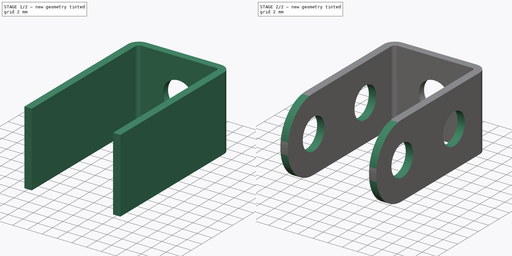
[diagram: build sequence overview — one tinted view per stage of 2, left to right]
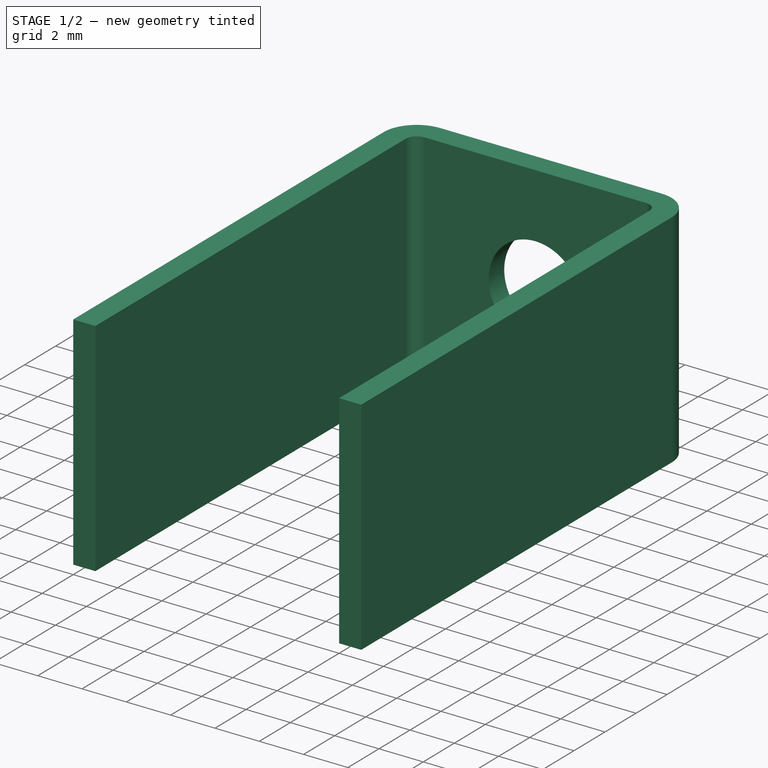
[diagram: stage 1 of 2 — iso view after this stage's code; geometry added in this stage tinted green]
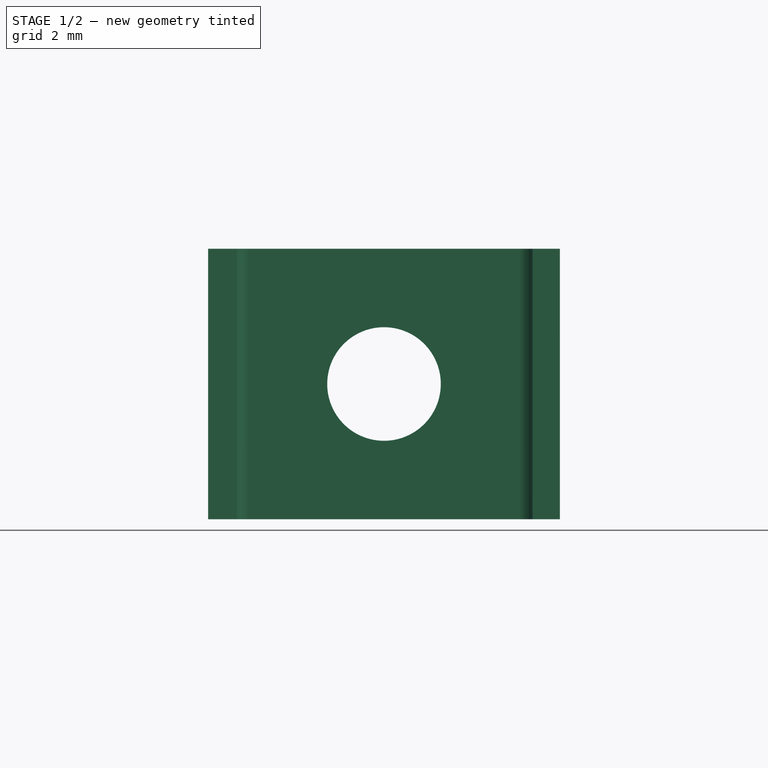
[diagram: stage 1 of 2 — front view after this stage's code; geometry added in this stage tinted green]
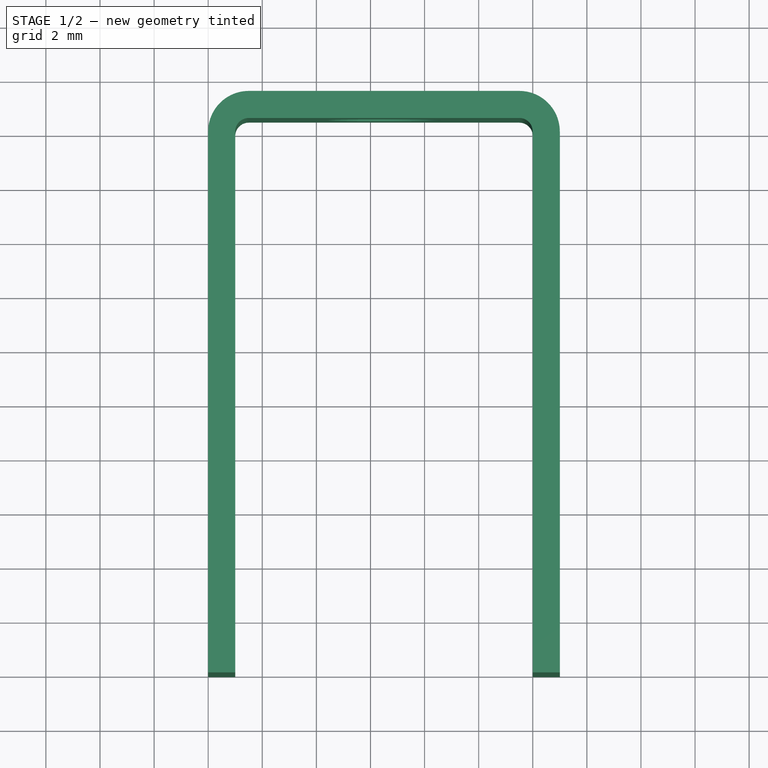
[diagram: stage 1 of 2 — top view after this stage's code; geometry added in this stage tinted green]
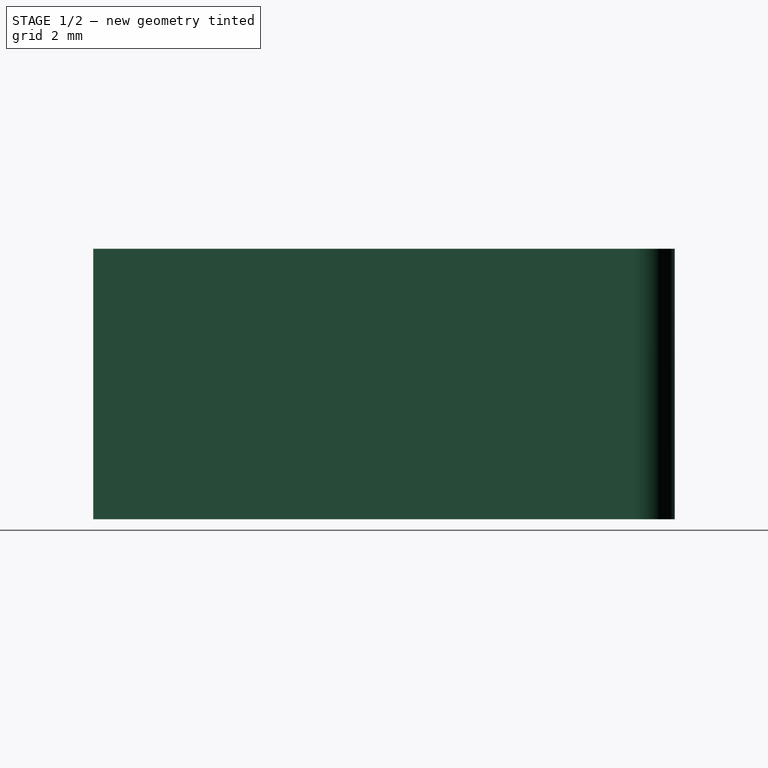
[diagram: stage 1 of 2 — right view after this stage's code; geometry added in this stage tinted green]
FCSTD DOCUMENT  (FreeCAD 0.16RUnknown)
Label: skoba_2_1_2
License: All rights reserved
LicenseURL: http://en.wikipedia.org/wiki/All_rights_reserved
objects: Sketcher::SketchObject×3, PartDesign::Pocket×2, PartDesign::Pad×1, PartDesign::Fillet×1
note: 10 computed .brp shape members not serialized (recipe doc carries the construction recipe); baked Part::Feature solids carry a one-line shape summary decoded from their .brp

FEATURE [Sketcher::SketchObject] Sketch
  sketch-geometry (12):
    g0: LineSegment StartX=0 StartY=-10 StartZ=0 EndX=0 EndY=10 EndZ=0
    g1: LineSegment StartX=1.5 StartY=11.5 StartZ=0 EndX=11.5 EndY=11.5 EndZ=0
    g2: ArcOfCircle CenterX=1.5 CenterY=10 CenterZ=0 NormalX=0 NormalY=0 NormalZ=1 Radius=1.5 StartAngle=1.5708 EndAngle=3.14159
    g3: LineSegment StartX=1 StartY=-10 StartZ=0 EndX=1 EndY=10 EndZ=0
    g4: LineSegment StartX=1.5 StartY=10.5 StartZ=0 EndX=11.5 EndY=10.5 EndZ=0
    g5: ArcOfCircle CenterX=1.5 CenterY=10 CenterZ=0 NormalX=0 NormalY=0 NormalZ=1 Radius=0.5 StartAngle=1.5708 EndAngle=3.14159
    g6: LineSegment StartX=0 StartY=-10 StartZ=0 EndX=1 EndY=-10 EndZ=0
    g7: ArcOfCircle CenterX=11.5 CenterY=10 CenterZ=0 NormalX=0 NormalY=0 NormalZ=1 Radius=1.5 StartAngle=0 EndAngle=1.5708
    g8: ArcOfCircle CenterX=11.5 CenterY=10 CenterZ=0 NormalX=0 NormalY=0 NormalZ=1 Radius=0.5 StartAngle=1.89717e-05 EndAngle=1.57079
    g9: LineSegment StartX=13 StartY=10 StartZ=0 EndX=13 EndY=-9.99999 EndZ=0
    g10: LineSegment StartX=12 StartY=10 StartZ=0 EndX=12 EndY=-9.99999 EndZ=0
    g11: LineSegment StartX=12 StartY=-9.99999 StartZ=0 EndX=13 EndY=-9.99999 EndZ=0
  constraints (35):
    c: Vertical(g0)
    c: Horizontal(g1)
    c: Tangent(g0,g2) = 1.5708
    c: Tangent(g1,g2) = 1.5708
    c: Radius(g2) = 1.5
    c: Vertical(g3)
    c: Horizontal(g4)
    c: Tangent(g3,g5) = 1.5708
    c: Tangent(g4,g5) = 1.5708
    c: Radius(g5) = 0.5
    c: DistanceY(g4,g1) = 1
    c: Horizontal(g6)
    c: Coincident(g0,g6)
    c: Coincident(g3,g6)
    c: DistanceY(g0,g0) = 20
    c: DistanceY(g1) = 11.5
    c: DistanceX(g6,g6) = 1
    c: DistanceX(g1,g1) = 10
    c: DistanceX(g1) = 1.5
    c: Coincident(g7,g1)
    c: Coincident(g8,g7)
    c: Coincident(g8,g4)
    c: Radius(g7) = 1.5
    c: Radius(g8) = 0.5
    c: Angle(g7) = 1.5708
    c: Coincident(g9,g7)
    c: Coincident(g10,g8)
    c: Coincident(g11,g10)
    c: Coincident(g11,g9)
    c: Vertical(g10)
    c: Vertical(g9)
    c: Horizontal(g11)
    c: DistanceX(g11,g11) = 1
    c: DistanceX(g1,g7) = 1.5
    c: Equal(g10,g0)
FEATURE [PartDesign::Pad] Pad
  Length = 10
  Length2 = 100
  Sketch = -> Sketch
  Type = 0
FEATURE [Sketcher::SketchObject] Sketch002
  Placement = pos=(0,11.5,0) rot=(0,0.707107,0.707107;3.14159rad)
  Support = -> Pad [Face3]
  sketch-geometry (1):
    g0: Circle CenterX=-6.5 CenterY=5 CenterZ=0 NormalX=0 NormalY=0 NormalZ=1 Radius=2.1
  constraints (3):
    c: Radius(g0) = 2.1
    c: DistanceX(g0) = -6.5
    c: DistanceY(g0) = 5
FEATURE [PartDesign::Pocket] Pocket
  Length = 5
  Sketch = -> Sketch002
  Type = 0
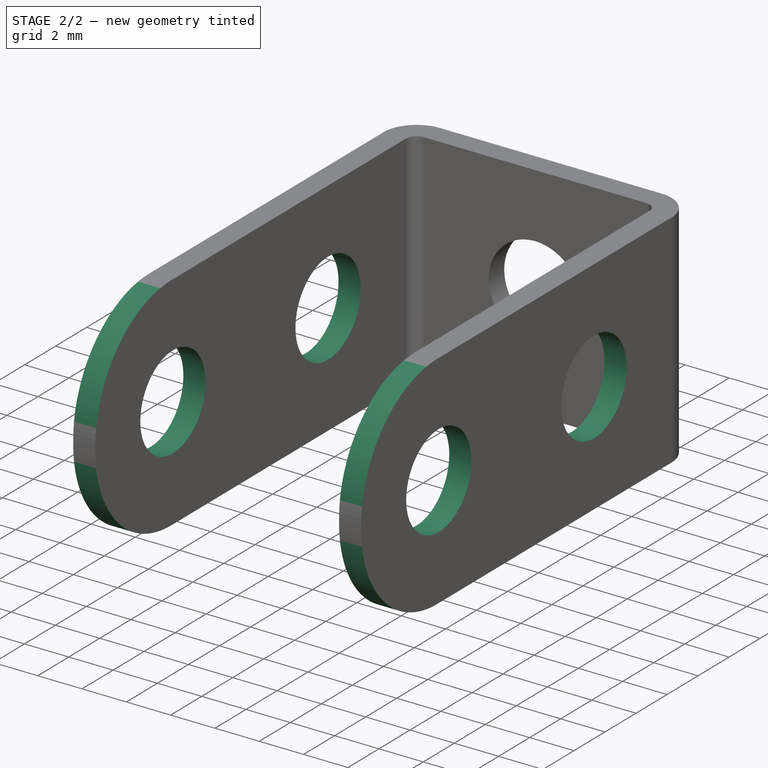
[diagram: stage 2 of 2 — iso view after this stage's code; geometry added in this stage tinted green]
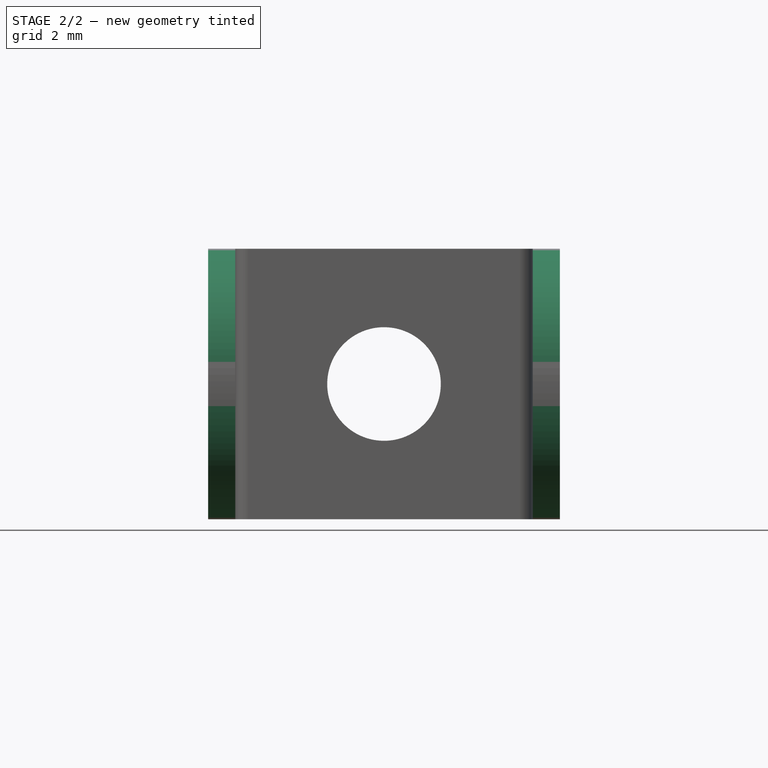
[diagram: stage 2 of 2 — front view after this stage's code; geometry added in this stage tinted green]
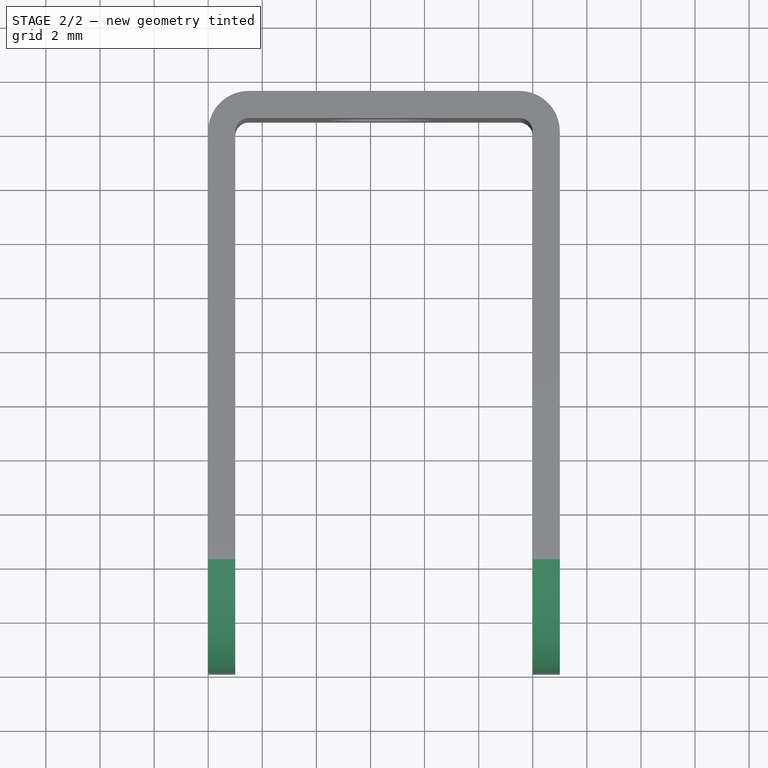
[diagram: stage 2 of 2 — top view after this stage's code; geometry added in this stage tinted green]
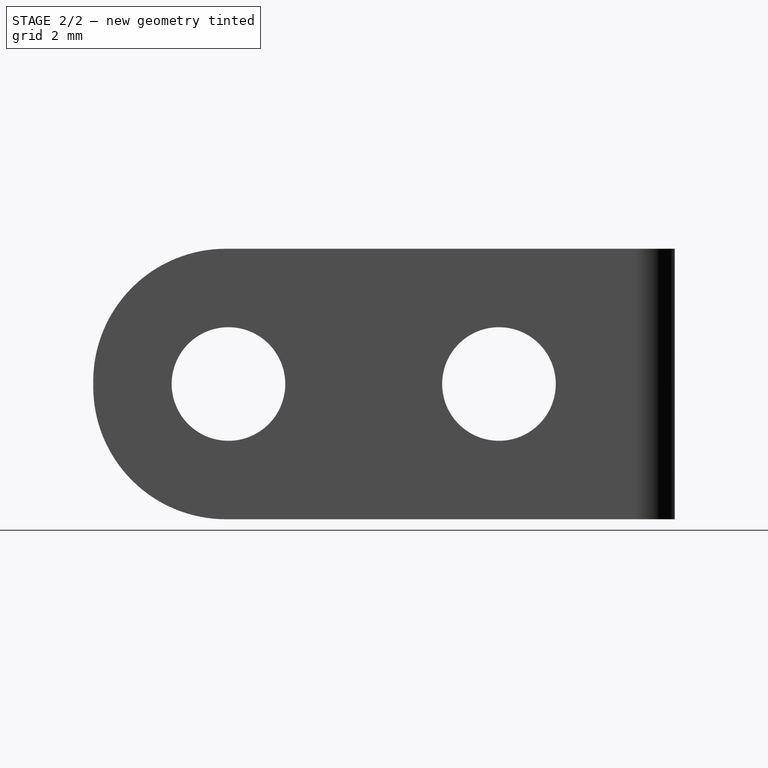
[diagram: stage 2 of 2 — right view after this stage's code; geometry added in this stage tinted green]
FEATURE [Sketcher::SketchObject] Sketch001
  Placement = pos=(0,0,0) rot=(0.57735,-0.57735,-0.57735;2.0944rad)
  Support = -> Pocket [Face1]
  sketch-geometry (2):
    g0: Circle CenterX=-5 CenterY=5 CenterZ=0 NormalX=0 NormalY=0 NormalZ=1 Radius=2.1
    g1: Circle CenterX=5 CenterY=5 CenterZ=0 NormalX=0 NormalY=0 NormalZ=1 Radius=2.1
  constraints (6):
    c: Radius(g0) = 2.1
    c: DistanceX(g0) = -5
    c: DistanceY(g0) = 5
    c: Equal(g0,g1) = 2.1
    c: DistanceX(g0,g1) = 10
    c: DistanceY(g1) = 5
FEATURE [PartDesign::Pocket] Pocket001
  Length = 5
  Sketch = -> Sketch001
  Type = 1
FEATURE [PartDesign::Fillet] Fillet
  Base = -> Pocket001 [Edge9,Edge24,Edge14,Edge8]
  Radius = 4.9
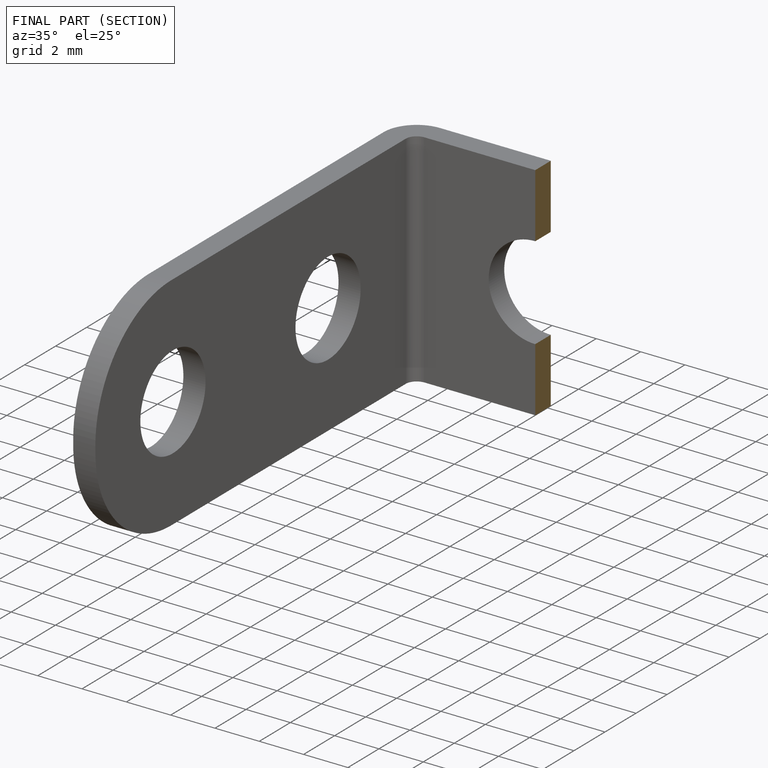
[diagram: finished part — half-section view (interior)]
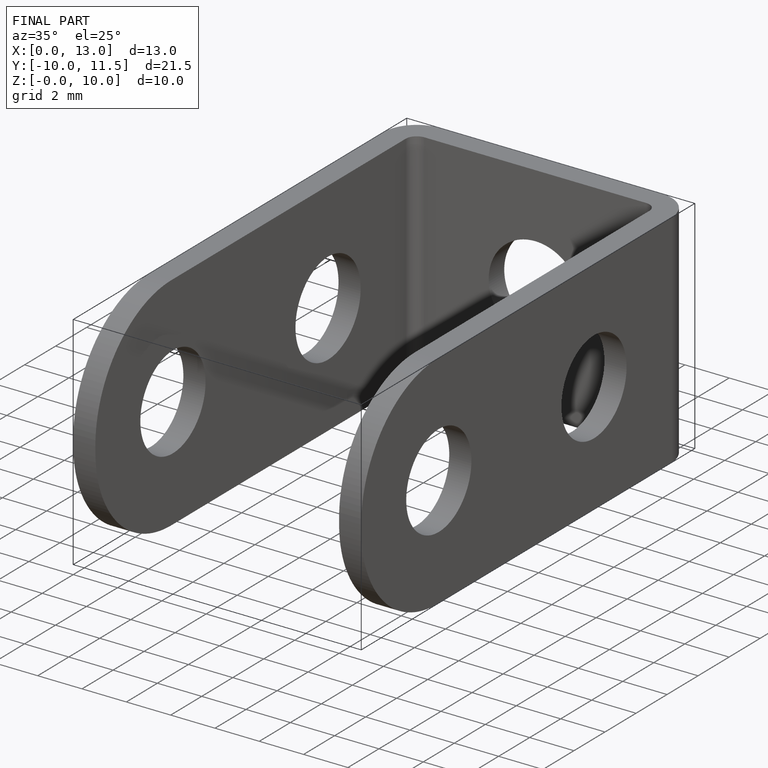
[diagram: finished part — iso view with bounding-box wireframe]
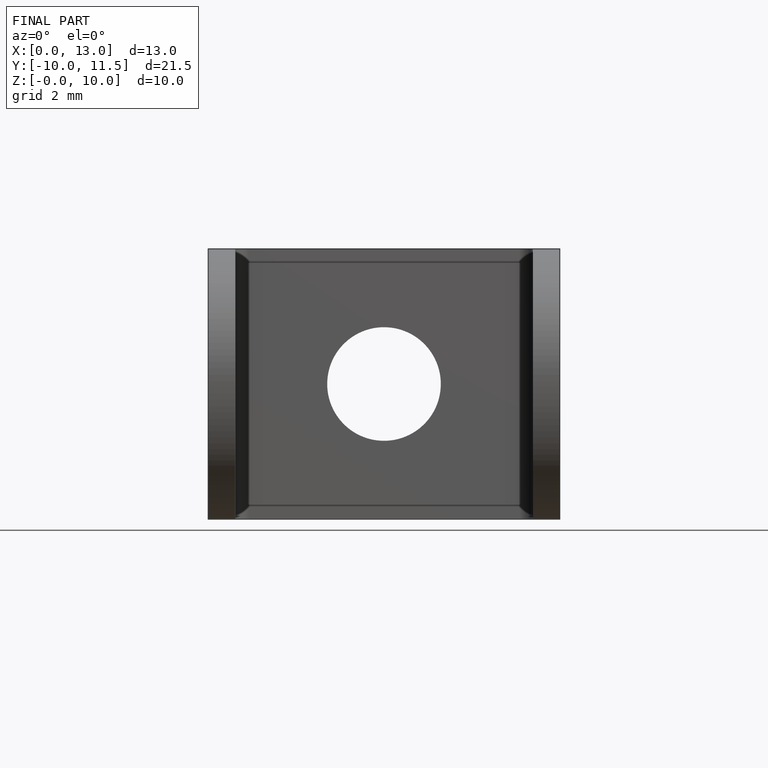
[diagram: finished part — front view with bounding-box wireframe]
